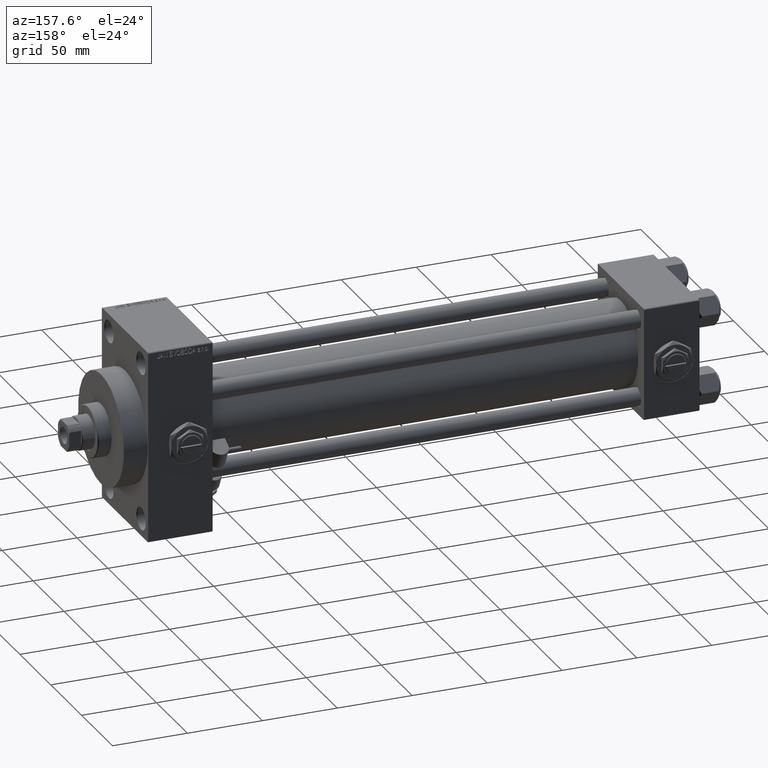
[diagram: clean part render]
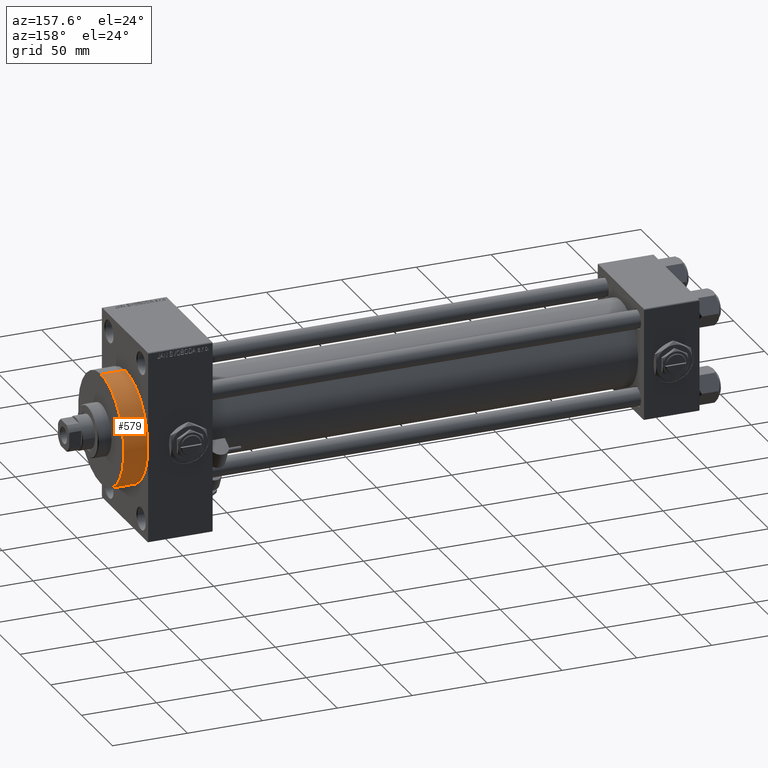
[diagram: same view with one face highlighted and labeled with its STEP entity id]
A machine part, auxiliary view. The second image highlights one B-rep face of the part: STEP entity #579.
In plain terms, the highlighted cylindrical surface (partial cylindrical patch) has radius 37 mm, axis along (-1, -0, -0).
Its self-contained STEP definition (entity closure, byte-faithful):
#579 = ADVANCED_FACE ( 'NONE', ( #38306 ), #46199, .T. ) ;
#952 = CARTESIAN_POINT ( 'NONE',  ( 383.9999999999999432, 4.531193156845206793E-15, -37.00000000000000000 ) ) ;
#1147 = DIRECTION ( 'NONE',  ( -1.000000000000000000, -0.000000000000000000, -0.000000000000000000 ) ) ;
#3303 = ORIENTED_EDGE ( 'NONE', *, *, #3644, .F. ) ;
#3644 = EDGE_CURVE ( 'NONE', #34752, #15565, #32680, .T. ) ;
#4233 = DIRECTION ( 'NONE',  ( 0.000000000000000000, 0.000000000000000000, 1.000000000000000000 ) ) ;
#4925 = CARTESIAN_POINT ( 'NONE',  ( 383.9999999999999432, 4.531193156845206793E-15, -37.00000000000000000 ) ) ;
#6886 = EDGE_LOOP ( 'NONE', ( #41076, #38537, #24743, #3303 ) ) ;
#7543 = CARTESIAN_POINT ( 'NONE',  ( 383.9999999999999432, 0.000000000000000000, 0.000000000000000000 ) ) ;
#8464 = AXIS2_PLACEMENT_3D ( 'NONE', #11376, #42911, #19265 ) ;
#10911 = VECTOR ( 'NONE', #12289, 1000.000000000000000 ) ;
#11376 = CARTESIAN_POINT ( 'NONE',  ( 383.9999999999999432, 0.000000000000000000, 0.000000000000000000 ) ) ;
#12289 = DIRECTION ( 'NONE',  ( -1.000000000000000000, -0.000000000000000000, -0.000000000000000000 ) ) ;
#15565 = VERTEX_POINT ( 'NONE', #40760 ) ;
#18953 = AXIS2_PLACEMENT_3D ( 'NONE', #37955, #25510, #41281 ) ;
#19265 = DIRECTION ( 'NONE',  ( 0.000000000000000000, 0.000000000000000000, -1.000000000000000000 ) ) ;
#19834 = CIRCLE ( 'NONE', #8464, 37.00000000000000000 ) ;
#20970 = CARTESIAN_POINT ( 'NONE',  ( 383.9999999999999432, 0.000000000000000000, 37.00000000000000000 ) ) ;
#23046 = DIRECTION ( 'NONE',  ( -1.000000000000000000, -0.000000000000000000, -0.000000000000000000 ) ) ;
#23880 = EDGE_CURVE ( 'NONE', #40210, #34752, #19834, .T. ) ;
#24743 = ORIENTED_EDGE ( 'NONE', *, *, #29643, .T. ) ;
#25510 = DIRECTION ( 'NONE',  ( 1.000000000000000000, 0.000000000000000000, 0.000000000000000000 ) ) ;
#29643 = EDGE_CURVE ( 'NONE', #35557, #15565, #44948, .T. ) ;
#32326 = CARTESIAN_POINT ( 'NONE',  ( 367.9999999999999432, 4.531193156845206793E-15, -37.00000000000000000 ) ) ;
#32680 = LINE ( 'NONE', #20970, #44539 ) ;
#33429 = EDGE_CURVE ( 'NONE', #40210, #35557, #38259, .T. ) ;
#34752 = VERTEX_POINT ( 'NONE', #36117 ) ;
#35557 = VERTEX_POINT ( 'NONE', #32326 ) ;
#36117 = CARTESIAN_POINT ( 'NONE',  ( 383.9999999999999432, 0.000000000000000000, 37.00000000000000000 ) ) ;
#37955 = CARTESIAN_POINT ( 'NONE',  ( 367.9999999999999432, 0.000000000000000000, 0.000000000000000000 ) ) ;
#38259 = LINE ( 'NONE', #4925, #10911 ) ;
#38306 = FACE_OUTER_BOUND ( 'NONE', #6886, .T. ) ;
#38537 = ORIENTED_EDGE ( 'NONE', *, *, #33429, .T. ) ;
#40210 = VERTEX_POINT ( 'NONE', #952 ) ;
#40760 = CARTESIAN_POINT ( 'NONE',  ( 367.9999999999999432, 0.000000000000000000, 37.00000000000000000 ) ) ;
#41076 = ORIENTED_EDGE ( 'NONE', *, *, #23880, .F. ) ;
#41281 = DIRECTION ( 'NONE',  ( 0.000000000000000000, 0.000000000000000000, -1.000000000000000000 ) ) ;
#41353 = AXIS2_PLACEMENT_3D ( 'NONE', #7543, #23046, #4233 ) ;
#42911 = DIRECTION ( 'NONE',  ( 1.000000000000000000, 0.000000000000000000, 0.000000000000000000 ) ) ;
#44539 = VECTOR ( 'NONE', #1147, 1000.000000000000000 ) ;
#44948 = CIRCLE ( 'NONE', #18953, 37.00000000000000000 ) ;
#46199 = CYLINDRICAL_SURFACE ( 'NONE', #41353, 37.00000000000000000 ) ;